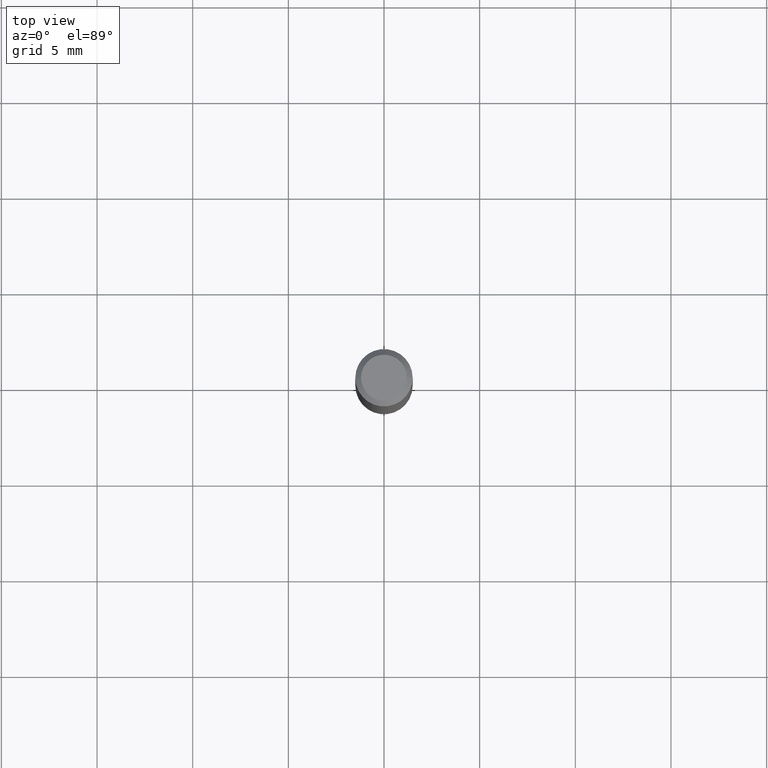
[diagram: clean part render]
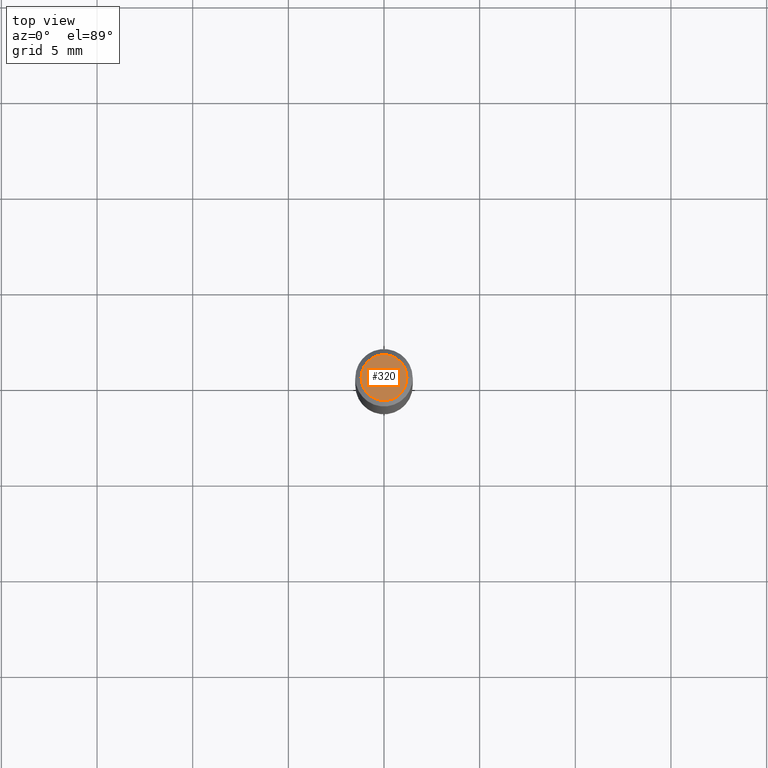
[diagram: same view with one face highlighted and labeled with its STEP entity id]
A machine part, top view. The second image highlights one B-rep face of the part: STEP entity #320.
In plain terms, the highlighted planar face has unit normal (0, -0, -1).
Its self-contained STEP definition (entity closure, byte-faithful):
#23 = CARTESIAN_POINT ( 'NONE',  ( -0.04724000000000000421, 3.504923541997677355E-16, -3.380025165670481712E-19 ) ) ;
#56 = CARTESIAN_POINT ( 'NONE',  ( 8.265746106709734507E-48, -1.180129479067563789E-33, -3.380025165646692144E-19 ) ) ;
#69 = CIRCLE ( 'NONE', #184, 0.04724000000000000421 ) ;
#81 = EDGE_CURVE ( 'NONE', #323, #104, #69, .T. ) ;
#101 = CIRCLE ( 'NONE', #296, 0.04724000000000000421 ) ;
#103 = DIRECTION ( 'NONE',  ( 1.000000000000000000, -6.982962677686266711E-15, 4.876185090822587894E-29 ) ) ;
#104 = VERTEX_POINT ( 'NONE', #23 ) ;
#117 = ORIENTED_EDGE ( 'NONE', *, *, #81, .T. ) ;
#140 = DIRECTION ( 'NONE',  ( -2.445468806185136597E-29, 3.491481338843145583E-15, 1.000000000000000000 ) ) ;
#158 = PLANE ( 'NONE',  #479 ) ;
#184 = AXIS2_PLACEMENT_3D ( 'NONE', #56, #289, #432 ) ;
#224 = CARTESIAN_POINT ( 'NONE',  ( 0.04724000000000000421, -3.852183633974369345E-16, -3.380025165621689721E-19 ) ) ;
#264 = EDGE_LOOP ( 'NONE', ( #355, #117 ) ) ;
#268 = EDGE_CURVE ( 'NONE', #104, #323, #101, .T. ) ;
#272 = FACE_OUTER_BOUND ( 'NONE', #264, .T. ) ;
#289 = DIRECTION ( 'NONE',  ( -2.445468806185136597E-29, 3.491481338843145583E-15, 1.000000000000000000 ) ) ;
#296 = AXIS2_PLACEMENT_3D ( 'NONE', #485, #140, #103 ) ;
#320 = ADVANCED_FACE ( 'NONE', ( #272 ), #158, .F. ) ;
#323 = VERTEX_POINT ( 'NONE', #224 ) ;
#326 = DIRECTION ( 'NONE',  ( 2.438088387897960049E-29, -3.491481338843145188E-15, -1.000000000000000000 ) ) ;
#337 = CARTESIAN_POINT ( 'NONE',  ( 4.132873053354867254E-48, -5.900647395337818946E-34, -1.690012582823346072E-19 ) ) ;
#355 = ORIENTED_EDGE ( 'NONE', *, *, #268, .T. ) ;
#432 = DIRECTION ( 'NONE',  ( 1.000000000000000000, -6.982962677686266711E-15, 4.876185090822587894E-29 ) ) ;
#447 = DIRECTION ( 'NONE',  ( -1.000000000000000000, 6.982962677686265922E-15, -4.876176775795935793E-29 ) ) ;
#479 = AXIS2_PLACEMENT_3D ( 'NONE', #337, #326, #447 ) ;
#485 = CARTESIAN_POINT ( 'NONE',  ( 8.265746106709734507E-48, -1.180129479067563789E-33, -3.380025165646692144E-19 ) ) ;